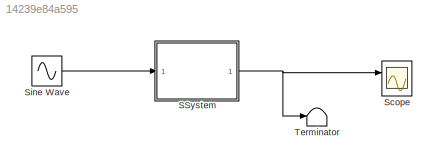
MODEL slx_14239e84a595
KIND model
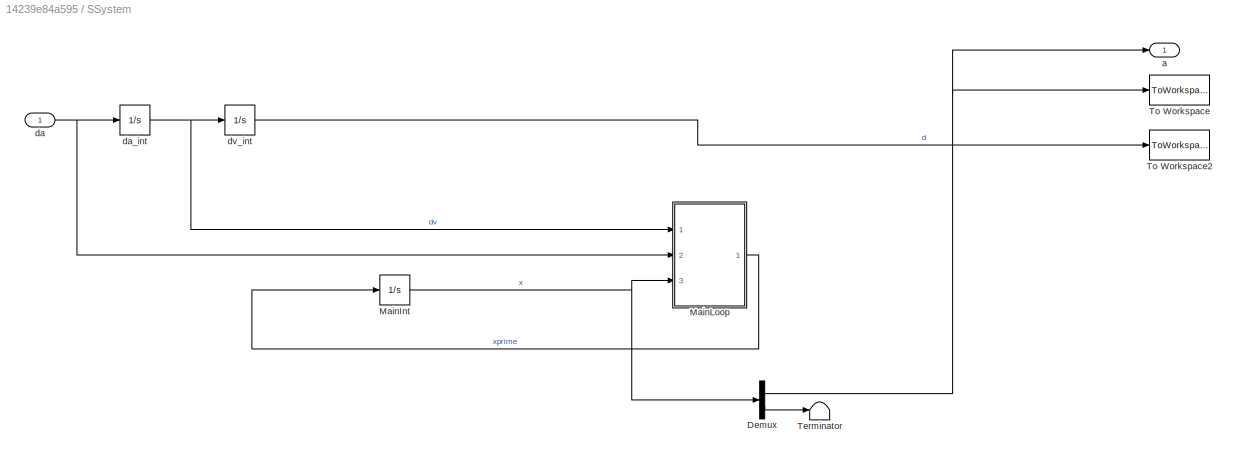
BLOCK [SubSystem] SSystem
  FunctionWithSeparateData = off
  MaskHideContents = off
  MinAlgLoopOccurrences = off
  Opaque = off
  Ports = [1, 1]
  PropExecContextOutsideSubsystem = off
  RTWSystemCode = Auto
  RequestExecContextInheritance = off
BLOCK [Demux] SSystem/Demux
  DisplayOption = bar
  Outputs = 2
  Ports = [1, 2]
BLOCK [Integrator] SSystem/MainInt
  InitialCondition = x_initial
  Ports = [1, 1]
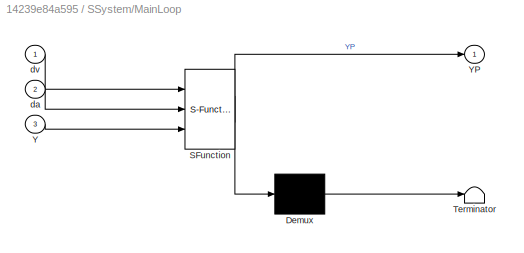
BLOCK [SubSystem] SSystem/MainLoop
  ErrorFcn = Stateflow.Translate.translate
  FunctionWithSeparateData = off
  MaskDescription = Embedded MATLAB block
  MaskDisplay = bgColor = Simulink.Root.ColorString2Rgb(get_param(gcbh, 'BackgroundColor')); image(imread('private/eml_membrane_16.png','png','BackgroundColor',bgColor(1:3)),'center'); disp([10 10 'MainLoop']);
  MaskHideContents = off
  MaskIconFrame = on
  MaskIconOpaque = off
  MaskIconRotate = none
  MaskIconUnits = normalized
  MaskPortRotate = default
  MaskSelfModifiable = on
  MaskType = Stateflow
  MinAlgLoopOccurrences = off
  Opaque = off
  PermitHierarchicalResolution = ParametersOnly
  Ports = [3, 1]
  PropExecContextOutsideSubsystem = off
  RTWSystemCode = Auto
  RequestExecContextInheritance = off
  SFBlockType = MATLAB Function
  TreatAsAtomicUnit = on
BLOCK [Demux] SSystem/MainLoop/ Demux 
  Outputs = 1
  Ports = [1, 1]
BLOCK [S-Function] SSystem/MainLoop/ SFunction 
  EnableBusSupport = on
  FunctionName = sf_sfun
  PortCounts = [3 2]
  Ports = [3, 2]
  SFunctionDeploymentMode = off
  Tag = Stateflow S-Function Linearisation_Sim_2012a 2
BLOCK [Terminator] SSystem/MainLoop/ Terminator 
BLOCK [Inport] SSystem/MainLoop/Y
  IconDisplay = Port number
  Port = 3
BLOCK [Outport] SSystem/MainLoop/YP
  IconDisplay = Port number
BLOCK [Inport] SSystem/MainLoop/da
  IconDisplay = Port number
  Port = 2
BLOCK [Inport] SSystem/MainLoop/dv
  IconDisplay = Port number
BLOCK [Terminator] SSystem/Terminator
BLOCK [ToWorkspace] SSystem/To Workspace
  FixptAsFi = on
  MaxDataPoints = inf
  Ports = [1]
  SampleTime = -1
  SaveFormat = Timeseries
  VariableName = a
BLOCK [ToWorkspace] SSystem/To Workspace2
  FixptAsFi = on
  MaxDataPoints = inf
  Ports = [1]
  SampleTime = -1
  SaveFormat = Timeseries
  VariableName = d
BLOCK [Outport] SSystem/a
  IconDisplay = Port number
BLOCK [Inport] SSystem/da
  IconDisplay = Port number
BLOCK [Integrator] SSystem/da_int
  InitialCondition = d_initial(2)
  Ports = [1, 1]
BLOCK [Integrator] SSystem/dv_int
  InitialCondition = d_initial(1)
  Ports = [1, 1]
BLOCK [Scope] Scope
  DataFormat = StructureWithTime
  Decimation = 1
  Floating = off
  Grid = on
  LimitDataPoints = off
  MaxDataPoints = 5000
  NumInputPorts = 2
  Ports = [2]
  SampleInput = off
  SampleTime = -1
  SaveName = ScopeData
  SaveToWorkspace = off
  ShowLegends = on
  TickLabels = OneTimeTick
  TimeRange = auto
  YMax = 33.34123~5
  YMin = -3.8211~-5
  ZoomMode = on
BLOCK [Sin] Sine Wave
  Amplitude = 3
  Frequency = 15
  Ports = [0, 1]
  SampleTime = 0
BLOCK [Terminator] Terminator
NET SSystem/Demux:1 -> SSystem/To Workspace:1, SSystem/a:1
LINE SSystem/Demux:2 -> SSystem/Terminator:1
NET SSystem/MainInt:1 -> SSystem/Demux:1, SSystem/MainLoop:3
LINE SSystem/MainLoop:1 -> SSystem/MainInt:1
NET SSystem/da:1 -> SSystem/MainLoop:2, SSystem/da_int:1
NET SSystem/da_int:1 -> SSystem/MainLoop:1, SSystem/dv_int:1
LINE SSystem/dv_int:1 -> SSystem/To Workspace2:1
NET SSystem:1 -> Scope:1, Terminator:1
LINE Sine Wave:1 -> SSystem:1
note: NET lines group one-source signal fan-out (src -> all destinations, sorted); 1:1 wires keep LINE
